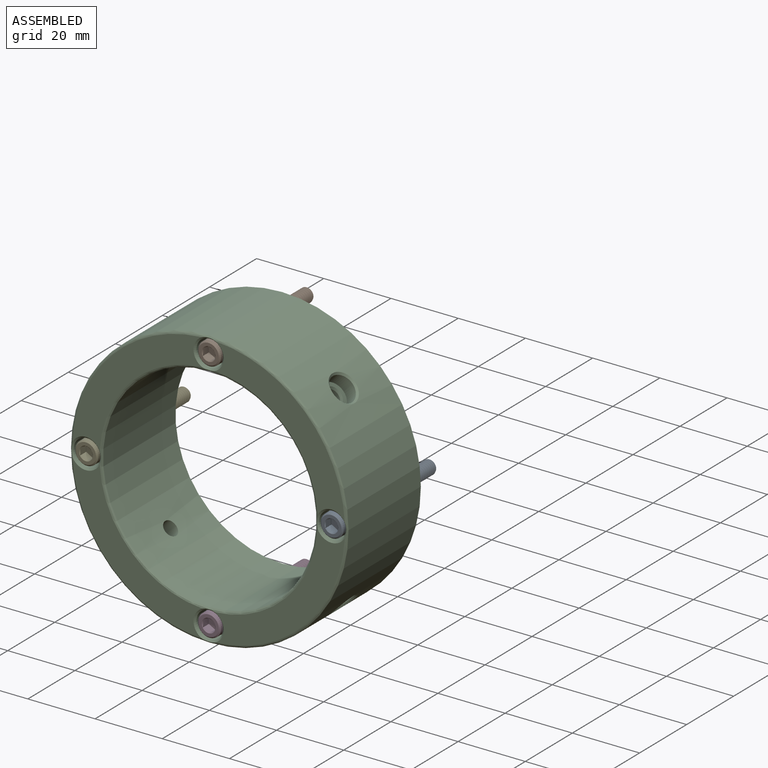
[diagram: assembled view]
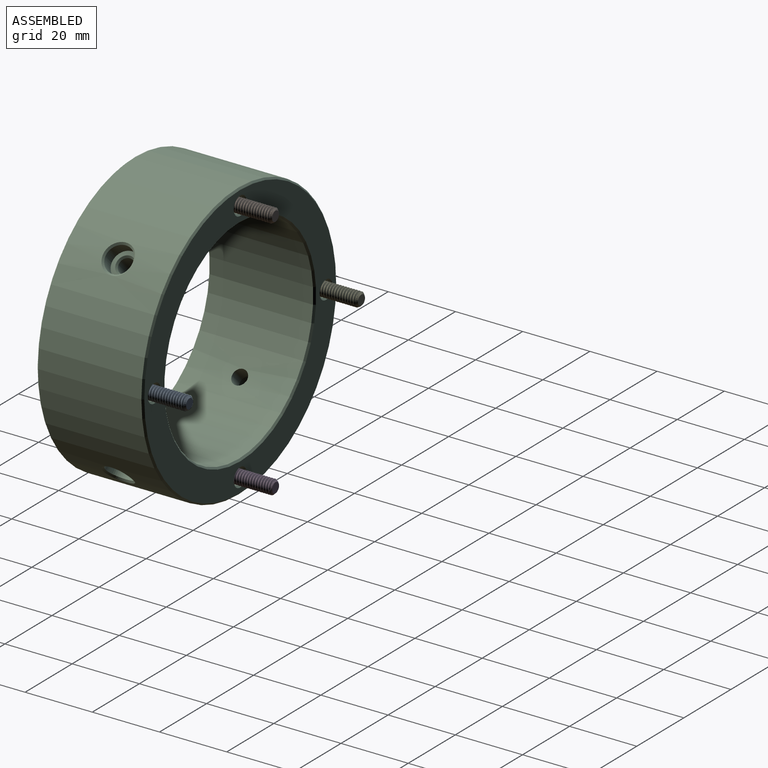
[diagram: assembled view, second angle]
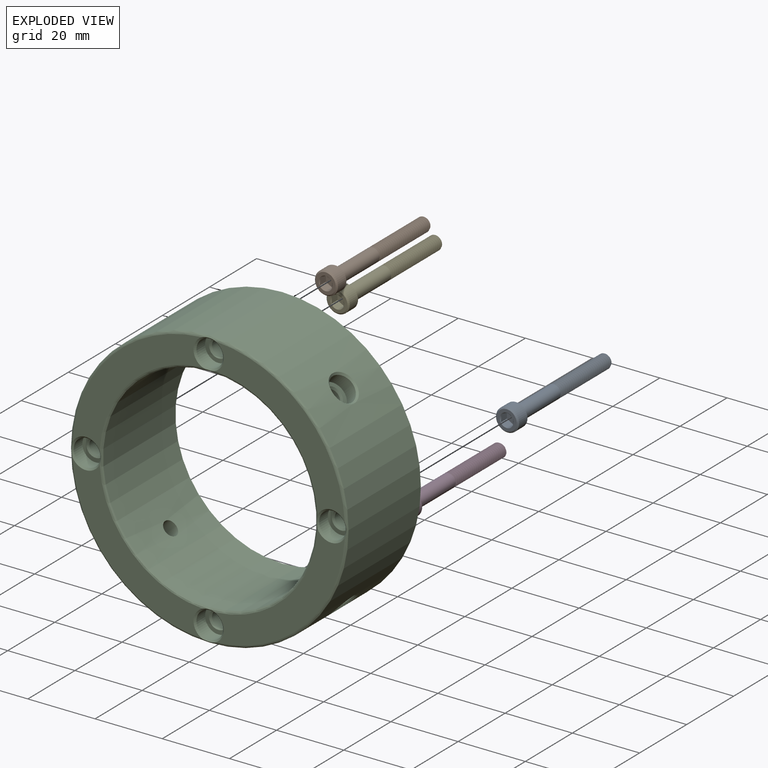
[diagram: exploded view]
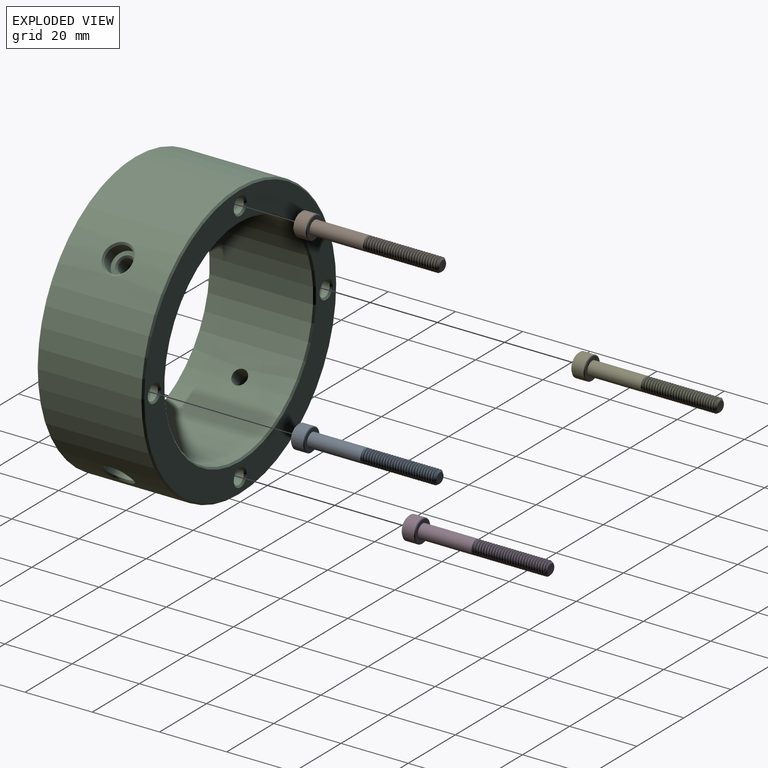
[diagram: exploded view, second angle]
ASSEMBLY  parts=5 mates=4
PART A: 53 faces, bbox 7.6x7.6x43.3 mm
  f0: cone r=3.43mm half-angle=45deg, axis (0,0,-1), area 6.2mm2, adj f1,f37
  f1: plane 6.44x6.44mm, normal (0,0,1), area 19mm2, adj f0,f2
  f2: cylinder r=2.08mm len=16.07mm, axis (0,0,1), area 208mm2, adj f1,f3,f34,f35,f36
  f3: cylinder r=2.08mm len=4.17mm, axis (0,0,1), area 1.3mm2, adj f2,f4,f34,f36
  f4: cylinder r=2.08mm len=4.17mm, axis (0,0,1), area 1.3mm2, adj f3,f5,f34,f36
  f5: cylinder r=2.08mm len=4.17mm, axis (0,0,1), area 1.3mm2, adj f4,f6,f34,f36
  f6: cylinder r=2.08mm len=4.17mm, axis (0,0,1), area 1.3mm2, adj f5,f7,f34,f36
  f7: cylinder r=2.08mm len=4.17mm, axis (0,0,1), area 1.3mm2, adj f6,f8,f34,f36
  f8: cylinder r=2.08mm len=4.17mm, axis (0,0,1), area 1.3mm2, adj f7,f9,f34,f36
  f9: cylinder r=2.08mm len=4.17mm, axis (0,0,1), area 1.3mm2, adj f8,f10,f34,f36
  f10: cylinder r=2.08mm len=4.17mm, axis (0,0,1), area 1.3mm2, adj f9,f11,f34,f36
  f11: cylinder r=2.08mm len=4.17mm, axis (0,0,1), area 1.3mm2, adj f10,f12,f34,f36
  f12: cylinder r=2.08mm len=4.17mm, axis (0,0,1), area 1.3mm2, adj f11,f13,f34,f36
  f13: cylinder r=2.08mm len=4.17mm, axis (0,0,1), area 1.3mm2, adj f12,f14,f34,f36
  f14: cylinder r=2.08mm len=4.17mm, axis (0,0,1), area 1.3mm2, adj f13,f15,f34,f36
  f15: cylinder r=2.08mm len=4.17mm, axis (0,0,1), area 1.3mm2, adj f14,f16,f34,f36
  f16: cylinder r=2.08mm len=4.17mm, axis (0,0,1), area 1.3mm2, adj f15,f17,f34,f36
  f17: cylinder r=2.08mm len=4.17mm, axis (0,0,1), area 1.3mm2, adj f16,f18,f34,f36
  f18: cylinder r=2.08mm len=4.17mm, axis (0,0,1), area 1.3mm2, adj f17,f19,f34,f36
  f19: cylinder r=2.08mm len=4.17mm, axis (0,0,1), area 1.3mm2, adj f18,f20,f34,f36
  f20: cylinder r=2.08mm len=4.17mm, axis (0,0,1), area 1.3mm2, adj f19,f21,f34,f36
  f21: cylinder r=2.08mm len=4.17mm, axis (0,0,1), area 1.3mm2, adj f20,f22,f34,f36
  f22: cylinder r=2.08mm len=4.17mm, axis (0,0,1), area 1.3mm2, adj f21,f23,f34,f36
  f23: cylinder r=2.08mm len=4.17mm, axis (0,0,1), area 1.3mm2, adj f22,f24,f34,f36
  f24: cylinder r=2.08mm len=4.17mm, axis (0,0,1), area 1.3mm2, adj f23,f25,f34,f36
  f25: cylinder r=2.08mm len=4.17mm, axis (0,0,1), area 1.3mm2, adj f24,f26,f34,f36
  f26: cylinder r=2.08mm len=4.17mm, axis (0,0,1), area 1.3mm2, adj f25,f27,f34,f36
  f27: cylinder r=2.08mm len=4.17mm, axis (0,0,1), area 1.3mm2, adj f26,f28,f34,f36
  f28: cylinder r=2.08mm len=4.17mm, axis (0,0,1), area 1.3mm2, adj f27,f29,f34,f36
  f29: cylinder r=2.08mm len=4.17mm, axis (0,0,1), area 1.3mm2, adj f28,f30,f34,f36
  f30: cylinder r=2.08mm len=1.49mm, axis (0,0,1), area 0.1mm2, adj f29,f31,f34
  f31: cone r=1.49mm half-angle=45deg, axis (0,0,-1), area 5.1mm2, adj f30,f32,f33,f34,f36
  f32: plane 2.98x2.98mm, normal (0,0,1), area 7mm2, adj f31
  f33: cylinder r=1.57mm len=21.63mm, axis (0,0,-1), area 26.6mm2, adj f31,f34,f35,f36
  f34: bspline ~22.74x4.16mm, area 186.7mm2, adj f2,f3,f4,f5,f6,f7,f8,f9
  f35: cone r=2.08mm half-angle=45deg, axis (0,0,-1), area 4.3mm2, adj f2,f33,f34,f36
  f36: bspline ~22.15x4.16mm, area 186.3mm2, adj f2,f3,f4,f5,f6,f7,f8,f9
  f37: cylinder r=3.43mm len=6.86mm, axis (0,0,1), area 76.3mm2, adj f0,f38
  f38: cone r=3.01mm half-angle=45deg, axis (0,0,1), area 11.9mm2, adj f37,f39
  f39: plane 6.7x6.7mm, normal (0,0,-1), area 15.1mm2, adj f38,f40,f48,f49,f50,f51,f52
  f40: cone r=2.06mm half-angle=45deg, axis (0,0,-1), area 0mm2, adj f39,f41
  f41: plane 3.46x2.57mm, normal (-0.5,-0.87,0), area 5.1mm2, adj f40,f42,f46,f47
  f42: plane 4.12x3.57mm, normal (0,0,-1), area 11mm2, adj f41,f43,f44,f45,f46,f47
  f43: plane 2.88x2.26mm, normal (1,0,0), area 5.2mm2, adj f42,f44,f47,f51
  f44: plane 3.46x2.57mm, normal (0.5,0.87,0), area 5.2mm2, adj f42,f43,f45,f50
  f45: plane 3.46x2.57mm, normal (-0.5,0.87,0), area 5.1mm2, adj f42,f44,f46,f49
  f46: plane 3.46x2.84mm, normal (-1,0,0), area 5.2mm2, adj f41,f42,f45,f48
  f47: plane 3.46x2.57mm, normal (0.5,-0.87,0), area 5.2mm2, adj f41,f42,f43,f52
  f48: cone r=2.06mm half-angle=45deg, axis (0,0,-1), area 0mm2, adj f39,f46
  f49: cone r=2.06mm half-angle=45deg, axis (0,0,-1), area 0mm2, adj f39,f45
  f50: cone r=2.06mm half-angle=45deg, axis (0,0,-1), area 0mm2, adj f39,f44
  f51: cone r=2.06mm half-angle=45deg, axis (0,0,-1), area 0.4mm2, adj f39,f43
  f52: cone r=2.06mm half-angle=45deg, axis (0,0,-1), area 0mm2, adj f39,f47
PART B: same geometry as A
PART C: 57 faces, bbox 82.6x31.8x82.6 mm
  f0: cylinder r=31.75mm len=63.5mm, axis (0,1,0), area 6067.3mm2, adj f20,f22,f38,f41,f44,f47
  f1: cylinder r=41.27mm len=82.55mm, axis (0,1,0), area 7712mm2, adj f19,f21,f50,f52,f54,f55
  f2: plane 38.7x38.7mm, normal (0,-1,0), area 403.2mm2, adj f30,f33,f34,f35
  f3: plane 38.7x38.7mm, normal (0,-1,0), area 403.2mm2, adj f30,f32,f33,f35
  f4: plane 38.7x38.7mm, normal (0,-1,0), area 403.2mm2, adj f30,f31,f32,f35
  f5: plane 38.7x38.7mm, normal (0,-1,0), area 403.2mm2, adj f30,f31,f34,f35
  f6: plane 81.53x81.53mm, normal (0,1,0), area 1856.6mm2, adj f19,f20,f23,f24,f25,f26
  f7: cylinder r=2.25mm len=26.57mm, axis (0,-1,0), area 375.3mm2, adj f26,f27
  f8: plane 7.94x7.94mm, normal (0,-1,0), area 25.6mm2, adj f9,f27
  f9: cylinder r=3.97mm len=7.94mm, axis (0,-1,0), area 91.2mm2, adj f8,f32
  f10: cylinder r=2.25mm len=26.57mm, axis (0,-1,0), area 375.3mm2, adj f23,f36
  f11: plane 7.94x7.94mm, normal (0,-1,0), area 25.6mm2, adj f12,f36
  f12: cylinder r=3.97mm len=7.94mm, axis (0,-1,0), area 91.2mm2, adj f11,f31
  f13: cylinder r=2.25mm len=26.57mm, axis (0,-1,0), area 375.3mm2, adj f25,f28
  f14: plane 7.94x7.94mm, normal (0,-1,0), area 25.6mm2, adj f15,f28
  f15: cylinder r=3.97mm len=7.94mm, axis (0,-1,0), area 91.2mm2, adj f14,f33
  f16: cylinder r=2.25mm len=26.57mm, axis (0,-1,0), area 375.3mm2, adj f24,f29
  f17: plane 7.94x7.94mm, normal (0,-1,0), area 25.6mm2, adj f18,f29
  f18: cylinder r=3.97mm len=7.94mm, axis (0,-1,0), area 91.2mm2, adj f17,f34
  f19: cone r=41.27mm half-angle=45deg, axis (0,-1,0), area 185.2mm2, adj f1,f6
  f20: cone r=32.26mm half-angle=45deg, axis (0,1,0), area 144.5mm2, adj f0,f6
  f21: cone r=40.77mm half-angle=45deg, axis (0,1,0), area 131.2mm2, adj f1,f30
  f22: cone r=31.75mm half-angle=45deg, axis (0,-1,0), area 101.9mm2, adj f0,f35
  f23: cone r=2.25mm half-angle=45deg, axis (0,1,0), area 11.3mm2, adj f6,f10
  f24: cone r=2.25mm half-angle=45deg, axis (0,1,0), area 11.3mm2, adj f6,f16
  f25: cone r=2.25mm half-angle=45deg, axis (0,1,0), area 11.3mm2, adj f6,f13
  f26: cone r=2.25mm half-angle=45deg, axis (0,1,0), area 11.3mm2, adj f6,f7
  f27: cone r=2.25mm half-angle=45deg, axis (0,-1,0), area 11.3mm2, adj f7,f8
  f28: cone r=2.25mm half-angle=45deg, axis (0,-1,0), area 11.3mm2, adj f13,f14
  f29: cone r=2.25mm half-angle=45deg, axis (0,-1,0), area 11.3mm2, adj f16,f17
  f30: cone r=40.56mm half-angle=67.5deg, axis (0,1,0), area 96.1mm2, adj f2,f3,f4,f5,f21,f31,f32,f33
  f31: cone r=3.97mm half-angle=45deg, axis (0,-1,0), area 19.1mm2, adj f4,f5,f12,f30,f35
  f32: cone r=3.97mm half-angle=45deg, axis (0,-1,0), area 18.7mm2, adj f3,f4,f9,f30,f35
  f33: cone r=3.97mm half-angle=45deg, axis (0,-1,0), area 19.1mm2, adj f2,f3,f15,f30,f35
  f34: cone r=3.97mm half-angle=45deg, axis (0,-1,0), area 18.4mm2, adj f2,f5,f18,f30,f35
  f35: cone r=32.47mm half-angle=67.5deg, axis (0,-1,0), area 75.7mm2, adj f2,f3,f4,f5,f22,f31,f32,f33
  f36: cone r=2.25mm half-angle=45deg, axis (0,-1,0), area 11.3mm2, adj f10,f11
  f37: cylinder r=3.97mm len=8.16mm, axis (0.71,0,-0.71), area 89.8mm2, adj f39,f52
  f38: cylinder r=2.25mm len=6.53mm, axis (0.71,0,-0.71), area 66.9mm2, adj f0,f51
  f39: plane 7.94x5.61mm, normal (0.71,0,-0.71), area 25.6mm2, adj f37,f51
  f40: cylinder r=3.97mm len=8.16mm, axis (0.71,0,0.71), area 89.8mm2, adj f42,f54
  f41: cylinder r=2.25mm len=6.53mm, axis (0.71,0,0.71), area 66.9mm2, adj f0,f53
  f42: plane 7.94x5.61mm, normal (0.71,0,0.71), area 25.6mm2, adj f40,f53
  f43: cylinder r=3.97mm len=8.16mm, axis (-0.71,0,0.71), area 89.8mm2, adj f45,f55
  f44: cylinder r=2.25mm len=6.53mm, axis (-0.71,0,0.71), area 66.9mm2, adj f0,f56
  f45: plane 7.94x5.61mm, normal (-0.71,0,0.71), area 25.6mm2, adj f43,f56
  f46: cylinder r=3.97mm len=8.16mm, axis (-0.71,0,-0.71), area 89.8mm2, adj f48,f50
  f47: cylinder r=2.25mm len=6.53mm, axis (-0.71,0,-0.71), area 66.9mm2, adj f0,f49
  f48: plane 7.94x5.61mm, normal (-0.71,0,-0.71), area 25.6mm2, adj f46,f49
  f49: cone r=2.25mm half-angle=45deg, axis (-0.71,0,-0.71), area 11.3mm2, adj f47,f48
  f50: bspline ~8.95x6.4mm, area 19.6mm2, adj f1,f46
  f51: cone r=2.25mm half-angle=45deg, axis (0.71,0,-0.71), area 11.3mm2, adj f38,f39
  f52: bspline ~8.95x6.4mm, area 19.6mm2, adj f1,f37
  f53: cone r=2.25mm half-angle=45deg, axis (0.71,0,0.71), area 11.3mm2, adj f41,f42
  f54: bspline ~8.95x6.4mm, area 19.6mm2, adj f1,f40
  f55: bspline ~8.95x6.4mm, area 19.6mm2, adj f1,f43
  f56: cone r=2.25mm half-angle=45deg, axis (-0.71,0,0.71), area 11.3mm2, adj f44,f45
PART D: same geometry as A
PART E: same geometry as A
PLACE A rot(axis=(-1,0,0),90deg) t=(36.51,10.52,0)mm
PLACE B rot(axis=(-1,0,0),90deg) t=(0,10.52,36.51)mm
PLACE C at identity
PLACE D rot(axis=(0,0.71,0.71),180deg) t=(0,10.52,-36.51)mm
PLACE E rot(axis=(-1,0,0),90deg) t=(-36.51,10.52,0)mm
MATE fastened A.f0 <-> C.f13  axis (0,1,0) through (36.51,-27.58,0)mm
MATE fastened B.f0 <-> C.f7  axis (0,1,0) through (0,-27.58,36.51)mm
MATE fastened E.f0 <-> C.f10  axis (0,1,0) through (-36.51,-27.58,0)mm
MATE fastened D.f0 <-> C.f16  axis (0,1,0) through (0,-27.58,-36.51)mm
